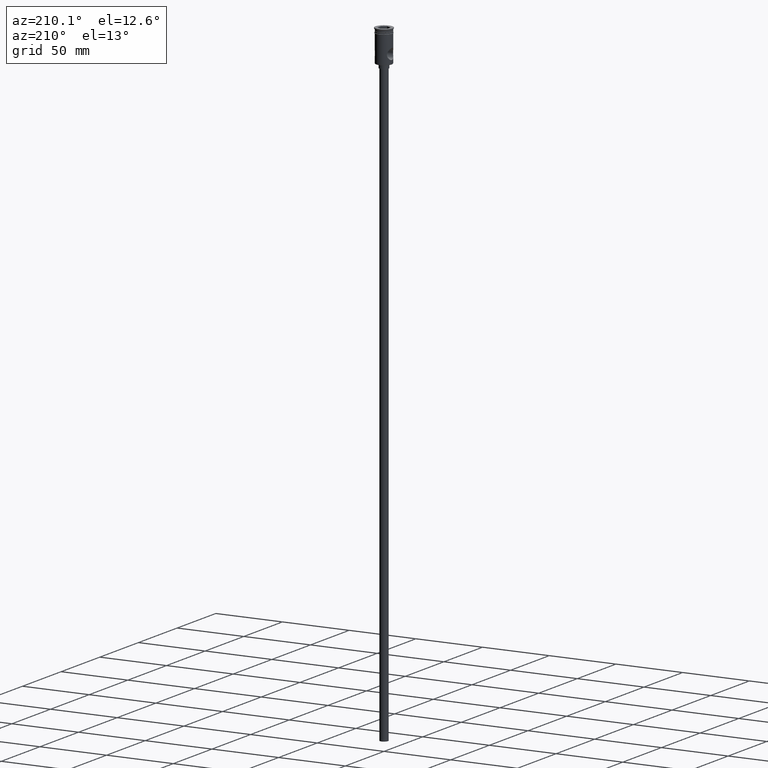
[diagram: clean part render]
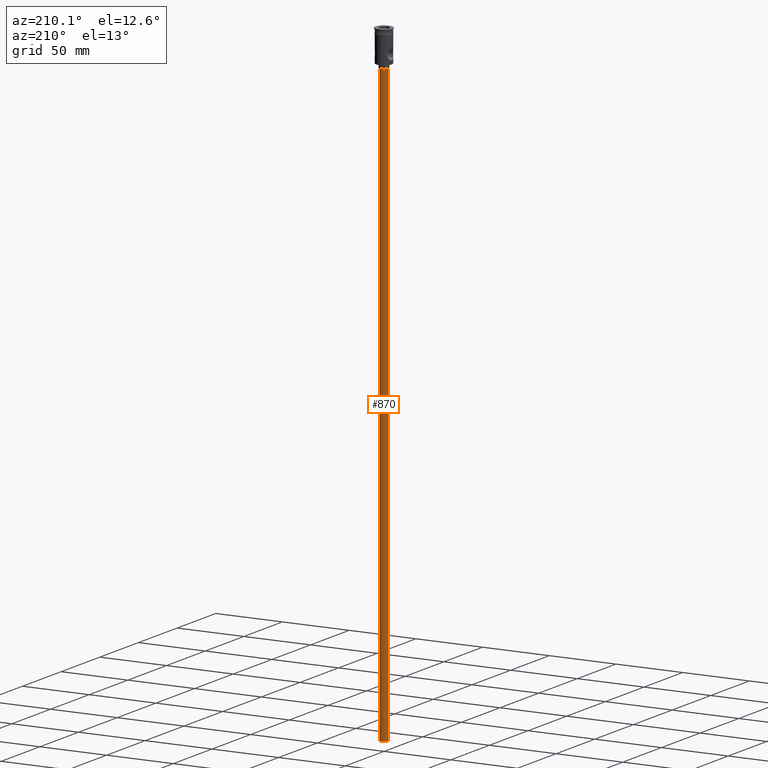
[diagram: same view with one face highlighted and labeled with its STEP entity id]
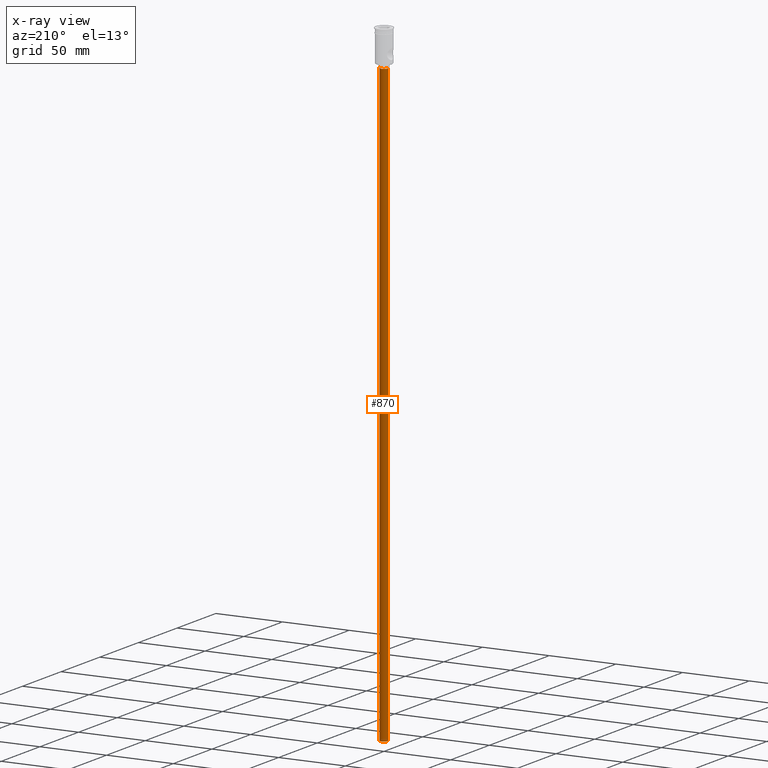
[diagram: x-ray of the same camera — body ghosted, the highlighted face saturated]
A machine part, auxiliary view. The second image highlights one B-rep face of the part: STEP entity #870.
The next image is the same camera in x-ray: the body ghosted, the highlighted face saturated — about 0% of this face is hidden behind the body in this view.
In plain terms, the highlighted cylindrical surface (edge-blend (fillet) strip) has radius 3 mm, axis along (-0, -0, 1).
Its self-contained STEP definition (entity closure, byte-faithful):
#22 = EDGE_CURVE ( 'NONE', #1113, #371, #875, .T. ) ;
#53 = ORIENTED_EDGE ( 'NONE', *, *, #1042, .F. ) ;
#152 = CARTESIAN_POINT ( 'NONE',  ( -3.000000000000000444, 3.673940397442060361E-16, -27.00000000000000000 ) ) ;
#176 = CARTESIAN_POINT ( 'NONE',  ( 3.000000000000000444, 0.000000000000000000, -474.0000000000000568 ) ) ;
#195 = DIRECTION ( 'NONE',  ( 1.000000000000000000, 0.000000000000000000, 0.000000000000000000 ) ) ;
#256 = CARTESIAN_POINT ( 'NONE',  ( 3.000000000000000444, 0.000000000000000000, -474.0000000000000568 ) ) ;
#286 = CIRCLE ( 'NONE', #1300, 3.000000000000000444 ) ;
#302 = CARTESIAN_POINT ( 'NONE',  ( 0.000000000000000000, 0.000000000000000000, -474.0000000000000568 ) ) ;
#371 = VERTEX_POINT ( 'NONE', #590 ) ;
#450 = DIRECTION ( 'NONE',  ( -1.000000000000000000, 0.000000000000000000, 0.000000000000000000 ) ) ;
#523 = CYLINDRICAL_SURFACE ( 'NONE', #1048, 3.000000000000000444 ) ;
#539 = CIRCLE ( 'NONE', #842, 3.000000000000000444 ) ;
#561 = LINE ( 'NONE', #672, #1205 ) ;
#573 = ORIENTED_EDGE ( 'NONE', *, *, #913, .T. ) ;
#590 = CARTESIAN_POINT ( 'NONE',  ( 3.000000000000000444, 0.000000000000000000, -27.00000000000000000 ) ) ;
#592 = VECTOR ( 'NONE', #1202, 1000.000000000000000 ) ;
#672 = CARTESIAN_POINT ( 'NONE',  ( -3.000000000000000444, 3.673940397442060361E-16, -474.0000000000000568 ) ) ;
#720 = CARTESIAN_POINT ( 'NONE',  ( -3.000000000000000444, 3.673940397442060361E-16, -474.0000000000000568 ) ) ;
#766 = DIRECTION ( 'NONE',  ( -0.000000000000000000, -0.000000000000000000, 1.000000000000000000 ) ) ;
#842 = AXIS2_PLACEMENT_3D ( 'NONE', #1145, #1137, #450 ) ;
#870 = ADVANCED_FACE ( 'NONE', ( #1102 ), #523, .T. ) ;
#875 = LINE ( 'NONE', #176, #592 ) ;
#895 = DIRECTION ( 'NONE',  ( 0.000000000000000000, 0.000000000000000000, -1.000000000000000000 ) ) ;
#913 = EDGE_CURVE ( 'NONE', #1182, #1154, #561, .T. ) ;
#996 = EDGE_CURVE ( 'NONE', #1154, #371, #286, .T. ) ;
#1037 = DIRECTION ( 'NONE',  ( -0.000000000000000000, -0.000000000000000000, 1.000000000000000000 ) ) ;
#1042 = EDGE_CURVE ( 'NONE', #1182, #1113, #539, .T. ) ;
#1048 = AXIS2_PLACEMENT_3D ( 'NONE', #302, #766, #195 ) ;
#1102 = FACE_OUTER_BOUND ( 'NONE', #1254, .T. ) ;
#1113 = VERTEX_POINT ( 'NONE', #256 ) ;
#1132 = CARTESIAN_POINT ( 'NONE',  ( 0.000000000000000000, 0.000000000000000000, -27.00000000000000000 ) ) ;
#1137 = DIRECTION ( 'NONE',  ( 0.000000000000000000, 0.000000000000000000, -1.000000000000000000 ) ) ;
#1145 = CARTESIAN_POINT ( 'NONE',  ( 0.000000000000000000, 0.000000000000000000, -474.0000000000000568 ) ) ;
#1147 = ORIENTED_EDGE ( 'NONE', *, *, #996, .T. ) ;
#1154 = VERTEX_POINT ( 'NONE', #152 ) ;
#1182 = VERTEX_POINT ( 'NONE', #720 ) ;
#1202 = DIRECTION ( 'NONE',  ( -0.000000000000000000, -0.000000000000000000, 1.000000000000000000 ) ) ;
#1205 = VECTOR ( 'NONE', #1037, 1000.000000000000000 ) ;
#1254 = EDGE_LOOP ( 'NONE', ( #53, #573, #1147, #1378 ) ) ;
#1300 = AXIS2_PLACEMENT_3D ( 'NONE', #1132, #895, #1466 ) ;
#1378 = ORIENTED_EDGE ( 'NONE', *, *, #22, .F. ) ;
#1466 = DIRECTION ( 'NONE',  ( -1.000000000000000000, 0.000000000000000000, 0.000000000000000000 ) ) ;